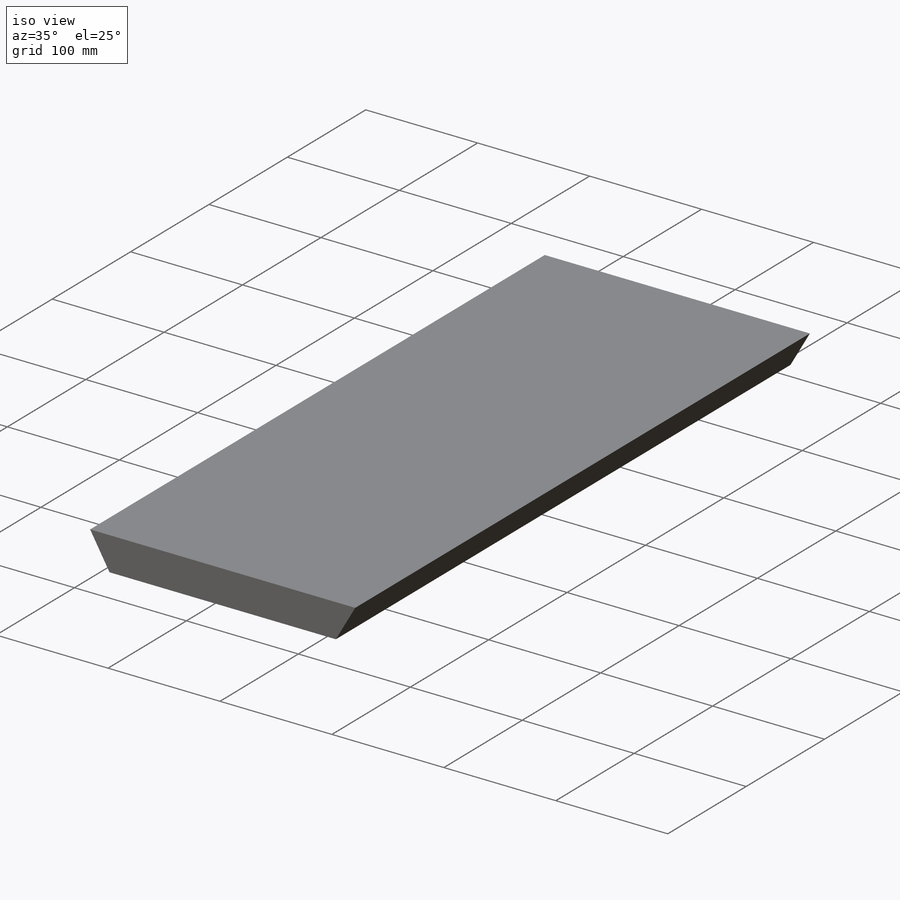
[diagram: iso view]
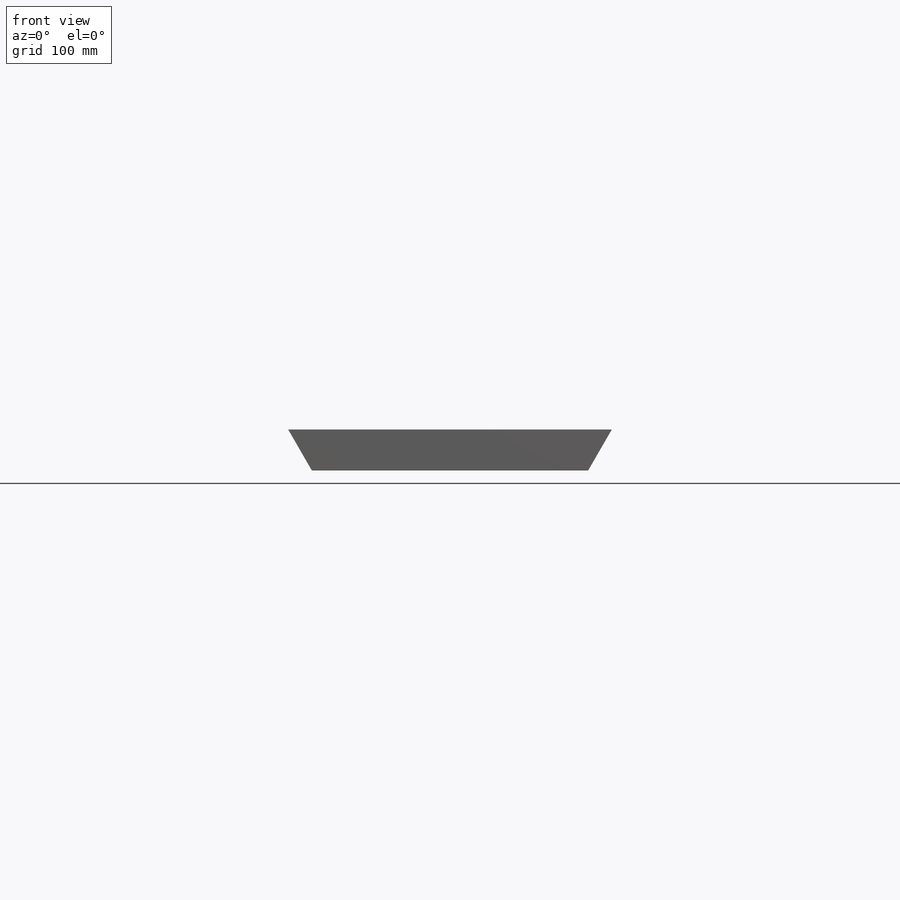
[diagram: front view]
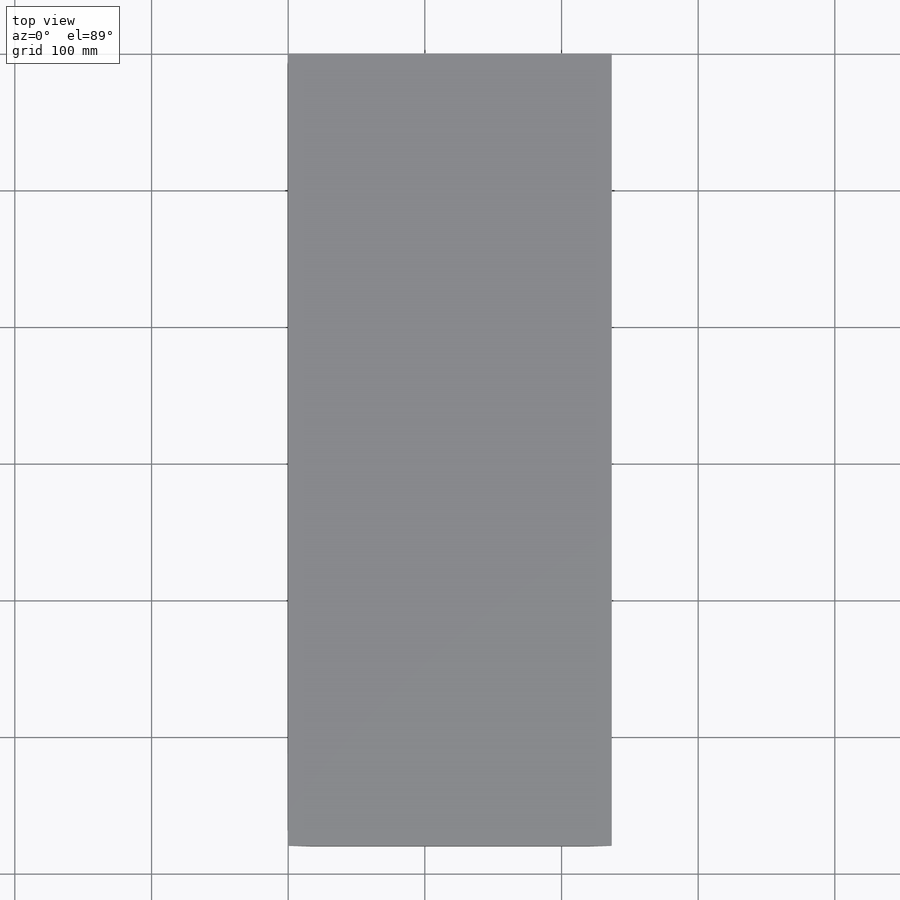
[diagram: top view]
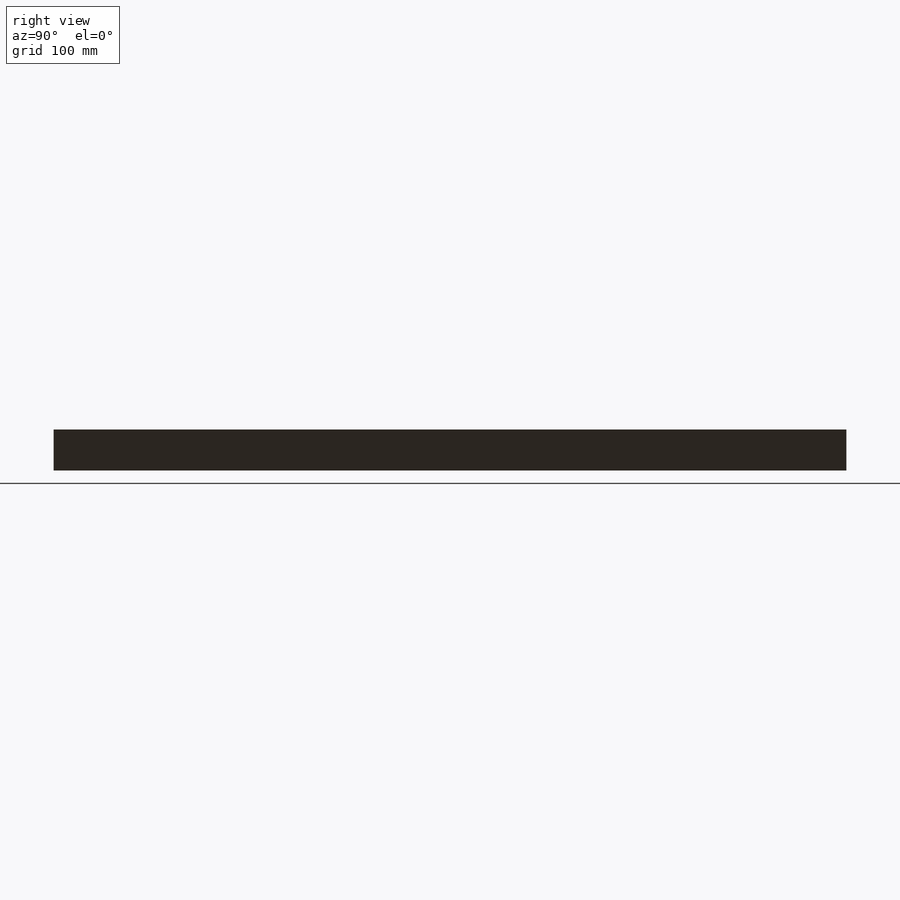
[diagram: right view]
SOLIDWORKS PART (.sldprt)
format: sldprt  version: not decoded by parser v0  size: 193,024 bytes
history: native  units: mm
features: sketch x4, plane x3, extrude x3, material x1, cut_extrude x1 (+10 scaffold rows collapsed)
feature tree (22):
  scaffold x10  (default folders/planes/origin — collapsed)
  material  "Matériau <non spécifié>"
  plane  "Plan de face"
  plane  "Plan de dessus"
  plane  "Plan de droite"
  sketch  "Esquisse1"  dims[c1.D1=30.0mm c1.D2=210.0mm c1.D3=34.64mm c1.D4=~17.318476mm c1.D5=17.32mm c1.D6=34.64mm c1.D7=34.64mm c1.D8=~17.318476mm c1.D9=~17.318476mm c1.D10=34.64mm c1.D11=~29.99736mm c1.D12=34.64mm c1.D13=~34.640762mm c1.D14=~29.99802mm c2.D2=250.0mm c2.D15=149.794mm c2.D16=~99.729215mm c3.D15=150.0mm c3.D16=150.0mm c3.D17=34.64mm c3.D18=~34.636951mm c3.D19=34.64mm c3.D20=~202.17067mm c3.D21=~353.910854mm c3.D22=410.0mm c4.D21=350.0mm c4.D23=~236.807622mm c4.D24=~34.636951mm c5.D24=~60.002911deg c6.D24=~34.636951mm c6.D21=410.0mm c6.D25=~340.718476mm]
  extrude  "Boss.-Extru.1"  Depth=580mm
  sketch  "Esquisse2"  dims[D1=200.0mm D3=63.0mm D2=100.0mm]
  cut_extrude  "Enlèv. mat.-Extru.1"  [1 undecoded]
  sketch  "Esquisse4"  dims[D1=20.0mm]
  extrude  "Boss.-Extru.2"  Depth=20mm
  sketch  "Esquisse5"  dims[D1=20.0mm]
  extrude  "Boss.-Extru.3"  Depth=20mm
decode coverage: 7 of 8 modeling features carry decoded parameters
note: ~ marks probable driven/reference dimensions
note: 1 parameter value undecoded
note: suppression state not decoded; provenance and decode notes live in map.json
